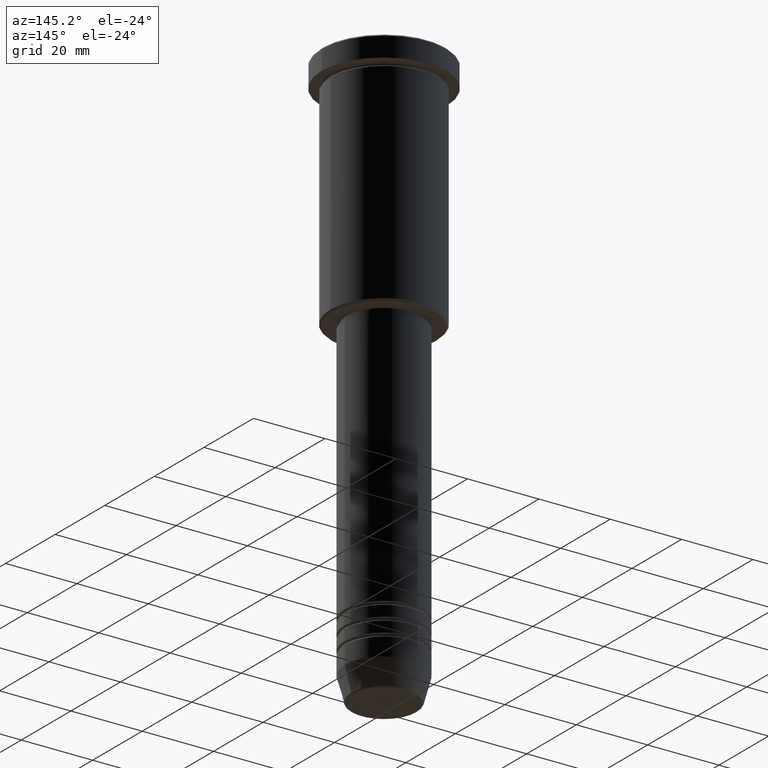
[diagram: clean part render]
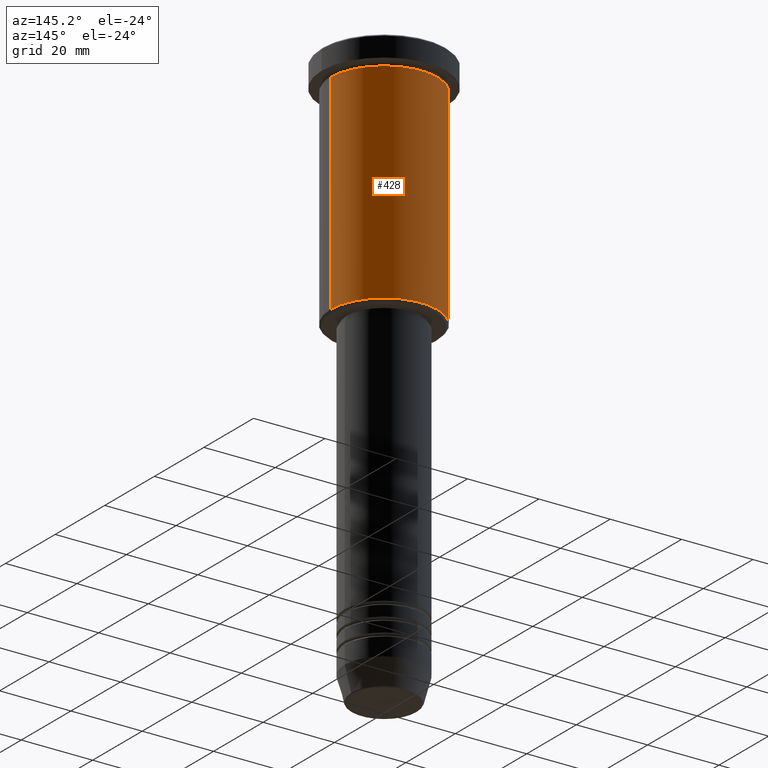
[diagram: same view with one face highlighted and labeled with its STEP entity id]
A machine part, auxiliary view. The second image highlights one B-rep face of the part: STEP entity #428.
In plain terms, the highlighted cylindrical surface (partial cylindrical patch) has radius 15 mm, axis along (-0, -0, 1).
Its self-contained STEP definition (entity closure, byte-faithful):
#31 = AXIS2_PLACEMENT_3D ( 'NONE', #836, #888, #741 ) ;
#61 = CIRCLE ( 'NONE', #1025, 15.00000000000000000 ) ;
#62 = DIRECTION ( 'NONE',  ( -0.000000000000000000, -0.000000000000000000, 1.000000000000000000 ) ) ;
#67 = DIRECTION ( 'NONE',  ( 1.000000000000000000, 0.000000000000000000, 0.000000000000000000 ) ) ;
#72 = ORIENTED_EDGE ( 'NONE', *, *, #1172, .T. ) ;
#87 = CARTESIAN_POINT ( 'NONE',  ( -15.00000000000000000, 1.836970198721029589E-15, -65.50000000000004263 ) ) ;
#98 = CARTESIAN_POINT ( 'NONE',  ( 15.00000000000000000, 0.000000000000000000, -65.50000000000004263 ) ) ;
#158 = LINE ( 'NONE', #1065, #587 ) ;
#187 = CARTESIAN_POINT ( 'NONE',  ( -15.00000000000000000, 1.836970198721029589E-15, 0.000000000000000000 ) ) ;
#212 = EDGE_LOOP ( 'NONE', ( #72, #1022, #445, #996 ) ) ;
#345 = FACE_OUTER_BOUND ( 'NONE', #212, .T. ) ;
#364 = CARTESIAN_POINT ( 'NONE',  ( 15.00000000000000000, 0.000000000000000000, -6.999999999999995559 ) ) ;
#379 = EDGE_CURVE ( 'NONE', #1054, #711, #158, .T. ) ;
#428 = ADVANCED_FACE ( 'NONE', ( #345 ), #1076, .T. ) ;
#445 = ORIENTED_EDGE ( 'NONE', *, *, #1015, .F. ) ;
#457 = AXIS2_PLACEMENT_3D ( 'NONE', #461, #715, #1084 ) ;
#461 = CARTESIAN_POINT ( 'NONE',  ( 0.000000000000000000, 0.000000000000000000, 0.000000000000000000 ) ) ;
#544 = LINE ( 'NONE', #187, #580 ) ;
#545 = CIRCLE ( 'NONE', #31, 15.00000000000000000 ) ;
#580 = VECTOR ( 'NONE', #1165, 1000.000000000000000 ) ;
#587 = VECTOR ( 'NONE', #62, 1000.000000000000000 ) ;
#632 = VERTEX_POINT ( 'NONE', #1082 ) ;
#689 = EDGE_CURVE ( 'NONE', #720, #632, #544, .T. ) ;
#711 = VERTEX_POINT ( 'NONE', #364 ) ;
#715 = DIRECTION ( 'NONE',  ( -0.000000000000000000, -0.000000000000000000, 1.000000000000000000 ) ) ;
#720 = VERTEX_POINT ( 'NONE', #87 ) ;
#741 = DIRECTION ( 'NONE',  ( -1.000000000000000000, 0.000000000000000000, 0.000000000000000000 ) ) ;
#836 = CARTESIAN_POINT ( 'NONE',  ( 0.000000000000000000, 0.000000000000000000, -65.50000000000004263 ) ) ;
#888 = DIRECTION ( 'NONE',  ( -0.000000000000000000, -0.000000000000000000, 1.000000000000000000 ) ) ;
#891 = CARTESIAN_POINT ( 'NONE',  ( 0.000000000000000000, 0.000000000000000000, -6.999999999999995559 ) ) ;
#989 = DIRECTION ( 'NONE',  ( -0.000000000000000000, -0.000000000000000000, 1.000000000000000000 ) ) ;
#996 = ORIENTED_EDGE ( 'NONE', *, *, #379, .F. ) ;
#1015 = EDGE_CURVE ( 'NONE', #711, #632, #61, .T. ) ;
#1022 = ORIENTED_EDGE ( 'NONE', *, *, #689, .T. ) ;
#1025 = AXIS2_PLACEMENT_3D ( 'NONE', #891, #989, #67 ) ;
#1054 = VERTEX_POINT ( 'NONE', #98 ) ;
#1065 = CARTESIAN_POINT ( 'NONE',  ( 15.00000000000000000, 0.000000000000000000, 0.000000000000000000 ) ) ;
#1076 = CYLINDRICAL_SURFACE ( 'NONE', #457, 15.00000000000000000 ) ;
#1082 = CARTESIAN_POINT ( 'NONE',  ( -15.00000000000000000, 1.836970198721029589E-15, -6.999999999999995559 ) ) ;
#1084 = DIRECTION ( 'NONE',  ( 1.000000000000000000, 0.000000000000000000, 0.000000000000000000 ) ) ;
#1165 = DIRECTION ( 'NONE',  ( -0.000000000000000000, -0.000000000000000000, 1.000000000000000000 ) ) ;
#1172 = EDGE_CURVE ( 'NONE', #1054, #720, #545, .T. ) ;